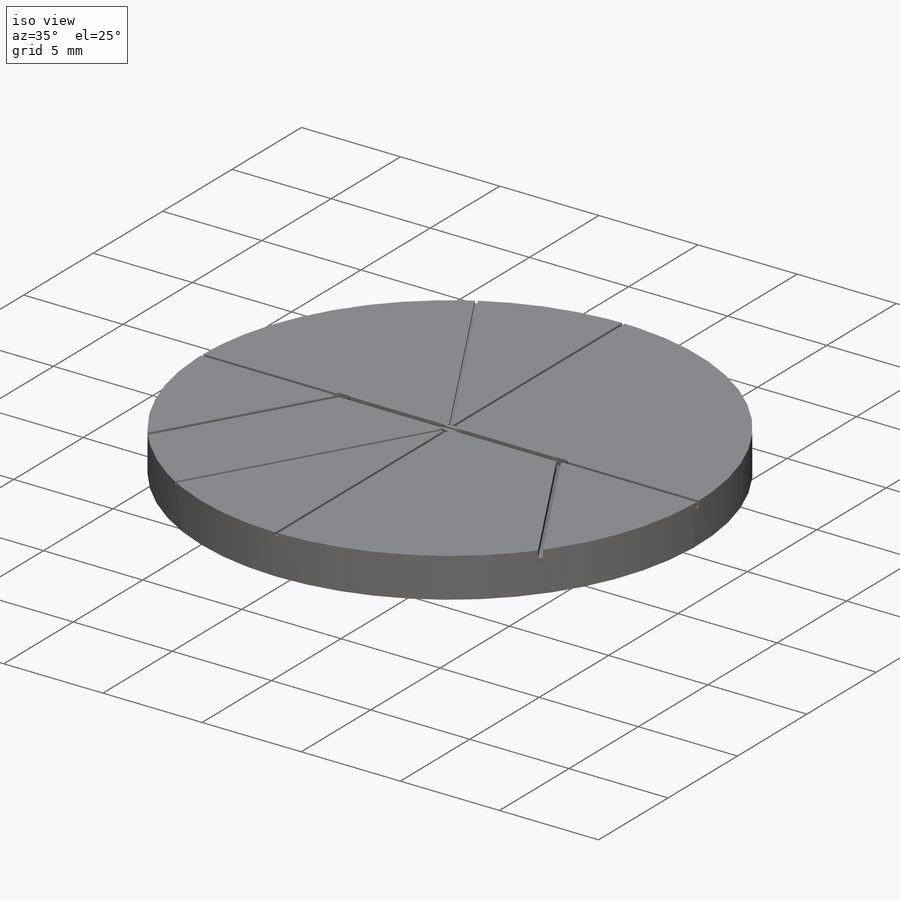
[diagram: iso view]
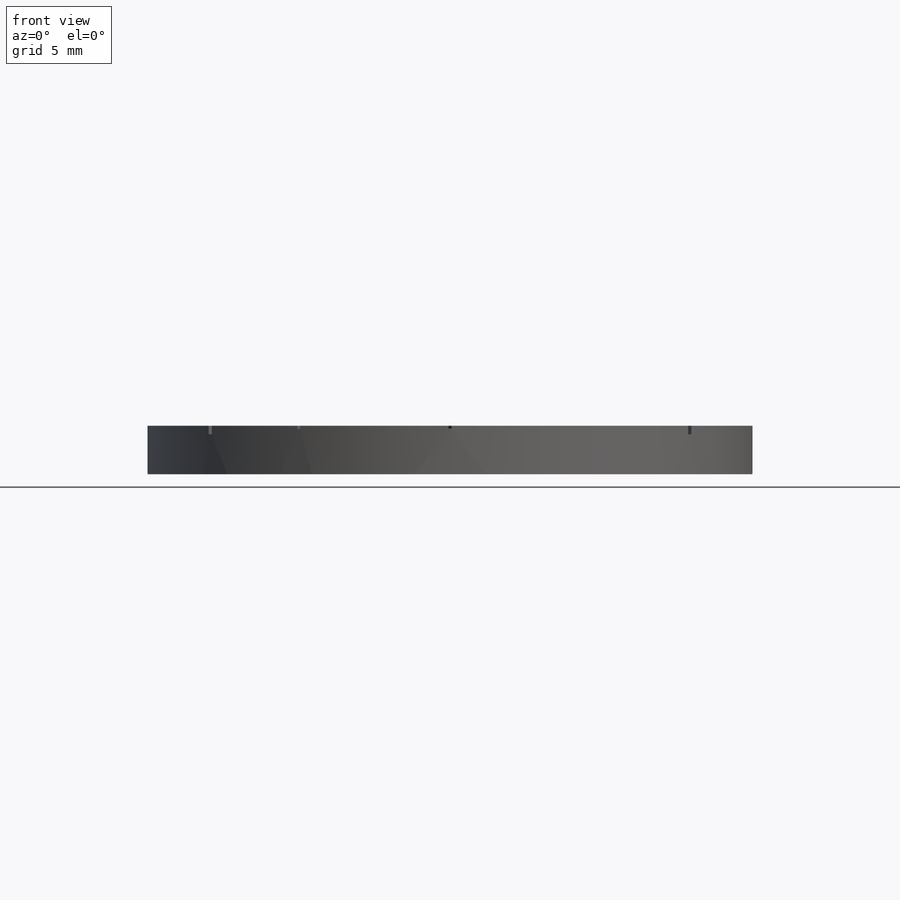
[diagram: front view]
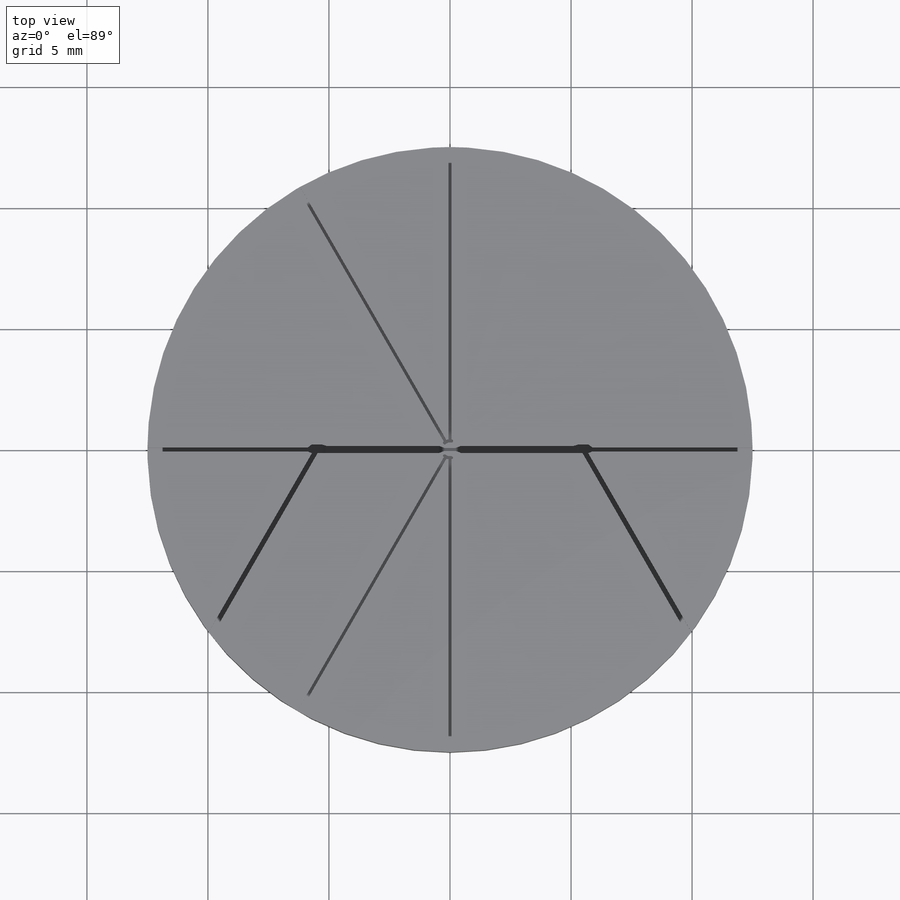
[diagram: top view]
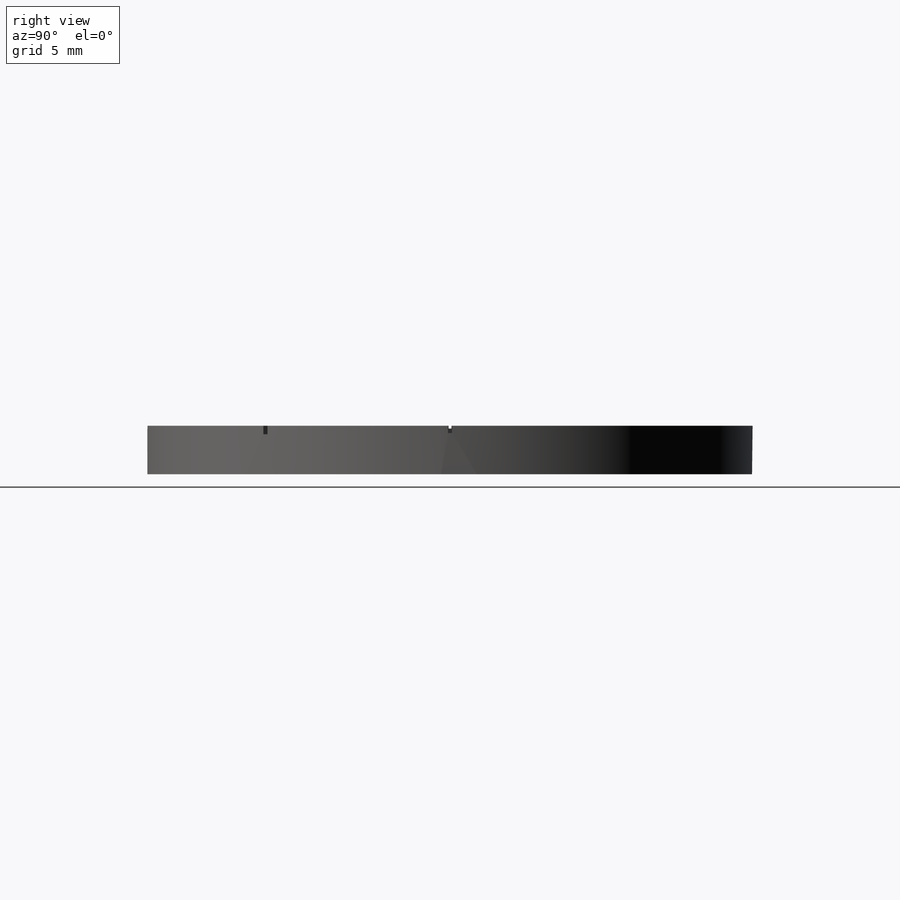
[diagram: right view]
SOLIDWORKS PART (.sldprt)
format: sldprt  version: not decoded by parser v0  size: 453,632 bytes
history: native  units: mm
features: sketch x18, cut_extrude x9, plane x9, extrude x2, mirror x2, material x1 (+16 scaffold rows collapsed)
feature tree (57):
  scaffold x16  (default folders/planes/origin — collapsed)
  material  "Material <not specified>"
  sketch  "Sketch1"  dims[D1=8.0mm]
  extrude  "Boss-Extrude1"  Depth=2mm
  sketch  "Sketch2"
  cut_extrude  "Cut-Extrude1"  Depth=3mm
  sketch  "Sketch4"
  cut_extrude  "Cut-Extrude2"  Depth=0.2mm
  plane  "Plane1"  Offset=0.3mm
  sketch  "Sketch5"
  cut_extrude  "Cut-Extrude3"  Depth=5mm
  sketch  "Sketch7"
  sketch  "Sketch8"
  plane  "Plane2"
  sketch  "Sketch9"  dims[c1.D1=10.0mm c2.D1=60.0deg]
  plane  "Plane3"
  plane  "Plane4"  Offset=0.1mm
  sketch  "Sketch15"
  cut_extrude  "Cut-Extrude4"  Depth=10mm
  sketch  "Sketch20"
  cut_extrude  "Cut-Extrude7"  Depth=0.2mm
  plane  "Plane5"  Offset=0.4mm
  sketch  "Sketch21"
  sketch  "Sketch22"
  plane  "Plane6"  Offset=0.4mm
  sketch  "Sketch23"
  sketch  "Sketch24"
  cut_extrude  "Cut-Extrude8"  [1 undecoded]
  sketch  "Sketch23<2>"  dims[D1=8.0mm]
  mirror  "Mirror1"
  plane  "Plane7"  Offset=0.3mm
  sketch  "Sketch26"
  cut_extrude  "Cut-Extrude9"  Depth=13mm
  sketch  "Sketch27"  dims[D1=120.0deg]
  plane  "Plane8"
  extrude  "Point2"  [1 undecoded]
  plane  "Plane9"
  sketch  "Sketch28"
  cut_extrude  "Cut-Extrude10"  Depth=13mm
  sketch  "Sketch32"  dims[D1=0.0mm]
  cut_extrude  "Cut-Extrude16"  Depth=0.125mm
  mirror  "Mirror2"
decode coverage: 14 of 31 modeling features carry decoded parameters
note: 2 parameter values undecoded
note: suppression state not decoded; provenance and decode notes live in map.json
